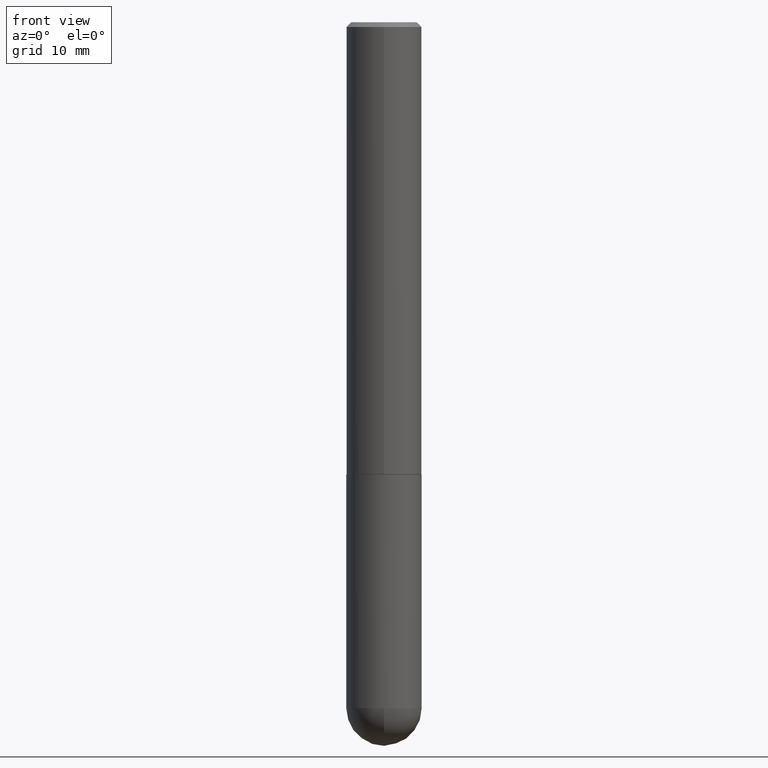
[diagram: clean part render]
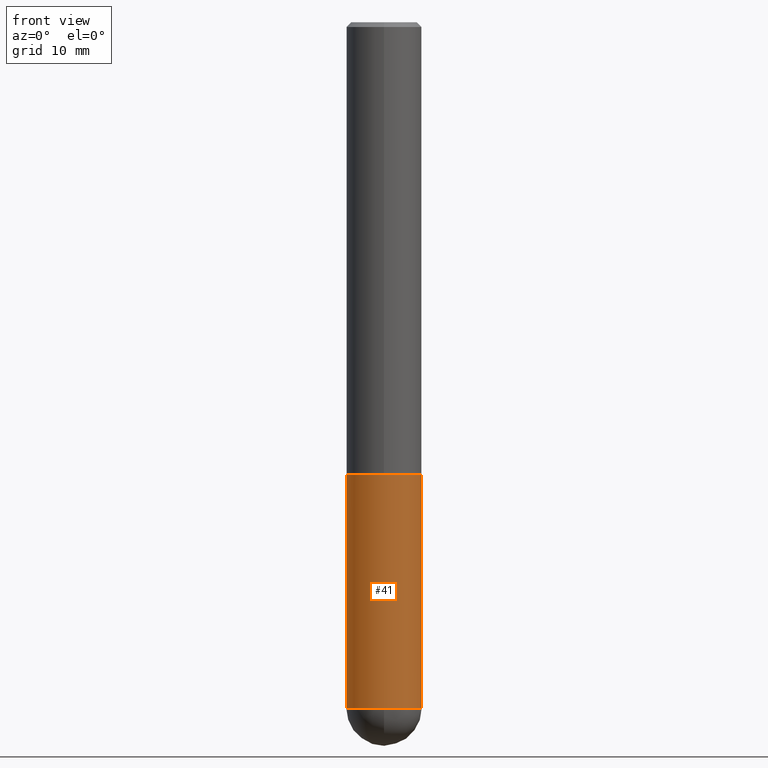
[diagram: same view with one face highlighted and labeled with its STEP entity id]
A machine part, front view. The second image highlights one B-rep face of the part: STEP entity #41.
In plain terms, the highlighted cylindrical surface (partial cylindrical patch) has radius 3.9688 mm, axis along (-0, 0, 1).
Its self-contained STEP definition (entity closure, byte-faithful):
#2 = ORIENTED_EDGE ( 'NONE', *, *, #310, .F. ) ;
#7 = DIRECTION ( 'NONE',  ( -2.445468806185136597E-29, 3.491481338843145583E-15, 1.000000000000000000 ) ) ;
#8 = EDGE_CURVE ( 'NONE', #254, #392, #345, .T. ) ;
#9 = CARTESIAN_POINT ( 'NONE',  ( -0.1562500000000000000, -7.127490759207891394E-15, -2.843750000000000000 ) ) ;
#12 = AXIS2_PLACEMENT_3D ( 'NONE', #213, #285, #409 ) ;
#22 = CARTESIAN_POINT ( 'NONE',  ( -0.1562500000000000000, 1.110223024625156540E-15, -7.685836078523291160E-30 ) ) ;
#23 = CARTESIAN_POINT ( 'NONE',  ( 0.1562500000000000000, -9.328801702221526319E-15, -2.843750000000000000 ) ) ;
#41 = ADVANCED_FACE ( 'NONE', ( #372 ), #94, .T. ) ;
#51 = CARTESIAN_POINT ( 'NONE',  ( 0.1562500000000000000, -1.091087918388479174E-15, 7.619026212181150377E-30 ) ) ;
#65 = CIRCLE ( 'NONE', #183, 0.1562500000000000000 ) ;
#94 = CYLINDRICAL_SURFACE ( 'NONE', #12, 0.1562500000000000000 ) ;
#129 = DIRECTION ( 'NONE',  ( 1.000000000000000000, -6.982962677686262766E-15, 0.000000000000000000 ) ) ;
#131 = AXIS2_PLACEMENT_3D ( 'NONE', #329, #341, #236 ) ;
#139 = AXIS2_PLACEMENT_3D ( 'NONE', #387, #7, #129 ) ;
#142 = CARTESIAN_POINT ( 'NONE',  ( 0.1562500000000000000, -7.637615428719378669E-15, -1.875000000000000000 ) ) ;
#154 = DIRECTION ( 'NONE',  ( -2.445468806185136877E-29, 3.491481338843145188E-15, 1.000000000000000000 ) ) ;
#173 = LINE ( 'NONE', #22, #395 ) ;
#178 = CARTESIAN_POINT ( 'NONE',  ( -1.110223024625089684E-15, -0.1562500000000103806, -2.843749999999999556 ) ) ;
#180 = DIRECTION ( 'NONE',  ( -2.445468806185136877E-29, 3.491481338843145188E-15, 1.000000000000000000 ) ) ;
#183 = AXIS2_PLACEMENT_3D ( 'NONE', #204, #311, #336 ) ;
#189 = ORIENTED_EDGE ( 'NONE', *, *, #302, .T. ) ;
#204 = CARTESIAN_POINT ( 'NONE',  ( 6.954301917588981076E-29, -9.928900057335195583E-15, -2.843750000000000000 ) ) ;
#213 = CARTESIAN_POINT ( 'NONE',  ( 0.000000000000000000, 0.000000000000000000, 0.000000000000000000 ) ) ;
#224 = ORIENTED_EDGE ( 'NONE', *, *, #308, .T. ) ;
#234 = ORIENTED_EDGE ( 'NONE', *, *, #8, .T. ) ;
#236 = DIRECTION ( 'NONE',  ( 1.000000000000000000, -6.982962677686269077E-15, 0.000000000000000000 ) ) ;
#238 = EDGE_CURVE ( 'NONE', #299, #346, #333, .T. ) ;
#254 = VERTEX_POINT ( 'NONE', #9 ) ;
#285 = DIRECTION ( 'NONE',  ( -2.445468806185136597E-29, 3.491481338843145583E-15, 1.000000000000000000 ) ) ;
#299 = VERTEX_POINT ( 'NONE', #316 ) ;
#301 = EDGE_LOOP ( 'NONE', ( #2, #234, #189, #224, #356 ) ) ;
#302 = EDGE_CURVE ( 'NONE', #392, #328, #65, .T. ) ;
#303 = VECTOR ( 'NONE', #180, 39.37007874015748143 ) ;
#308 = EDGE_CURVE ( 'NONE', #328, #346, #343, .T. ) ;
#310 = EDGE_CURVE ( 'NONE', #254, #299, #173, .T. ) ;
#311 = DIRECTION ( 'NONE',  ( -2.445468806185136597E-29, 3.491481338843145583E-15, 1.000000000000000000 ) ) ;
#316 = CARTESIAN_POINT ( 'NONE',  ( -0.1562500000000000000, -7.127490759207891394E-15, -1.875000000000000000 ) ) ;
#328 = VERTEX_POINT ( 'NONE', #23 ) ;
#329 = CARTESIAN_POINT ( 'NONE',  ( 4.585254011597131119E-29, -6.546527510330898707E-15, -1.875000000000000000 ) ) ;
#333 = CIRCLE ( 'NONE', #131, 0.1562500000000000000 ) ;
#336 = DIRECTION ( 'NONE',  ( 1.000000000000000000, -6.982962677686262766E-15, 0.000000000000000000 ) ) ;
#341 = DIRECTION ( 'NONE',  ( -2.445468806185136597E-29, 3.491481338843145583E-15, 1.000000000000000000 ) ) ;
#343 = LINE ( 'NONE', #51, #303 ) ;
#345 = CIRCLE ( 'NONE', #139, 0.1562500000000000000 ) ;
#346 = VERTEX_POINT ( 'NONE', #142 ) ;
#356 = ORIENTED_EDGE ( 'NONE', *, *, #238, .F. ) ;
#372 = FACE_OUTER_BOUND ( 'NONE', #301, .T. ) ;
#387 = CARTESIAN_POINT ( 'NONE',  ( 6.954301917588981076E-29, -9.928900057335195583E-15, -2.843750000000000000 ) ) ;
#392 = VERTEX_POINT ( 'NONE', #178 ) ;
#395 = VECTOR ( 'NONE', #154, 39.37007874015748143 ) ;
#409 = DIRECTION ( 'NONE',  ( 1.000000000000000000, -6.982962677686266711E-15, 4.876176775795936353E-29 ) ) ;